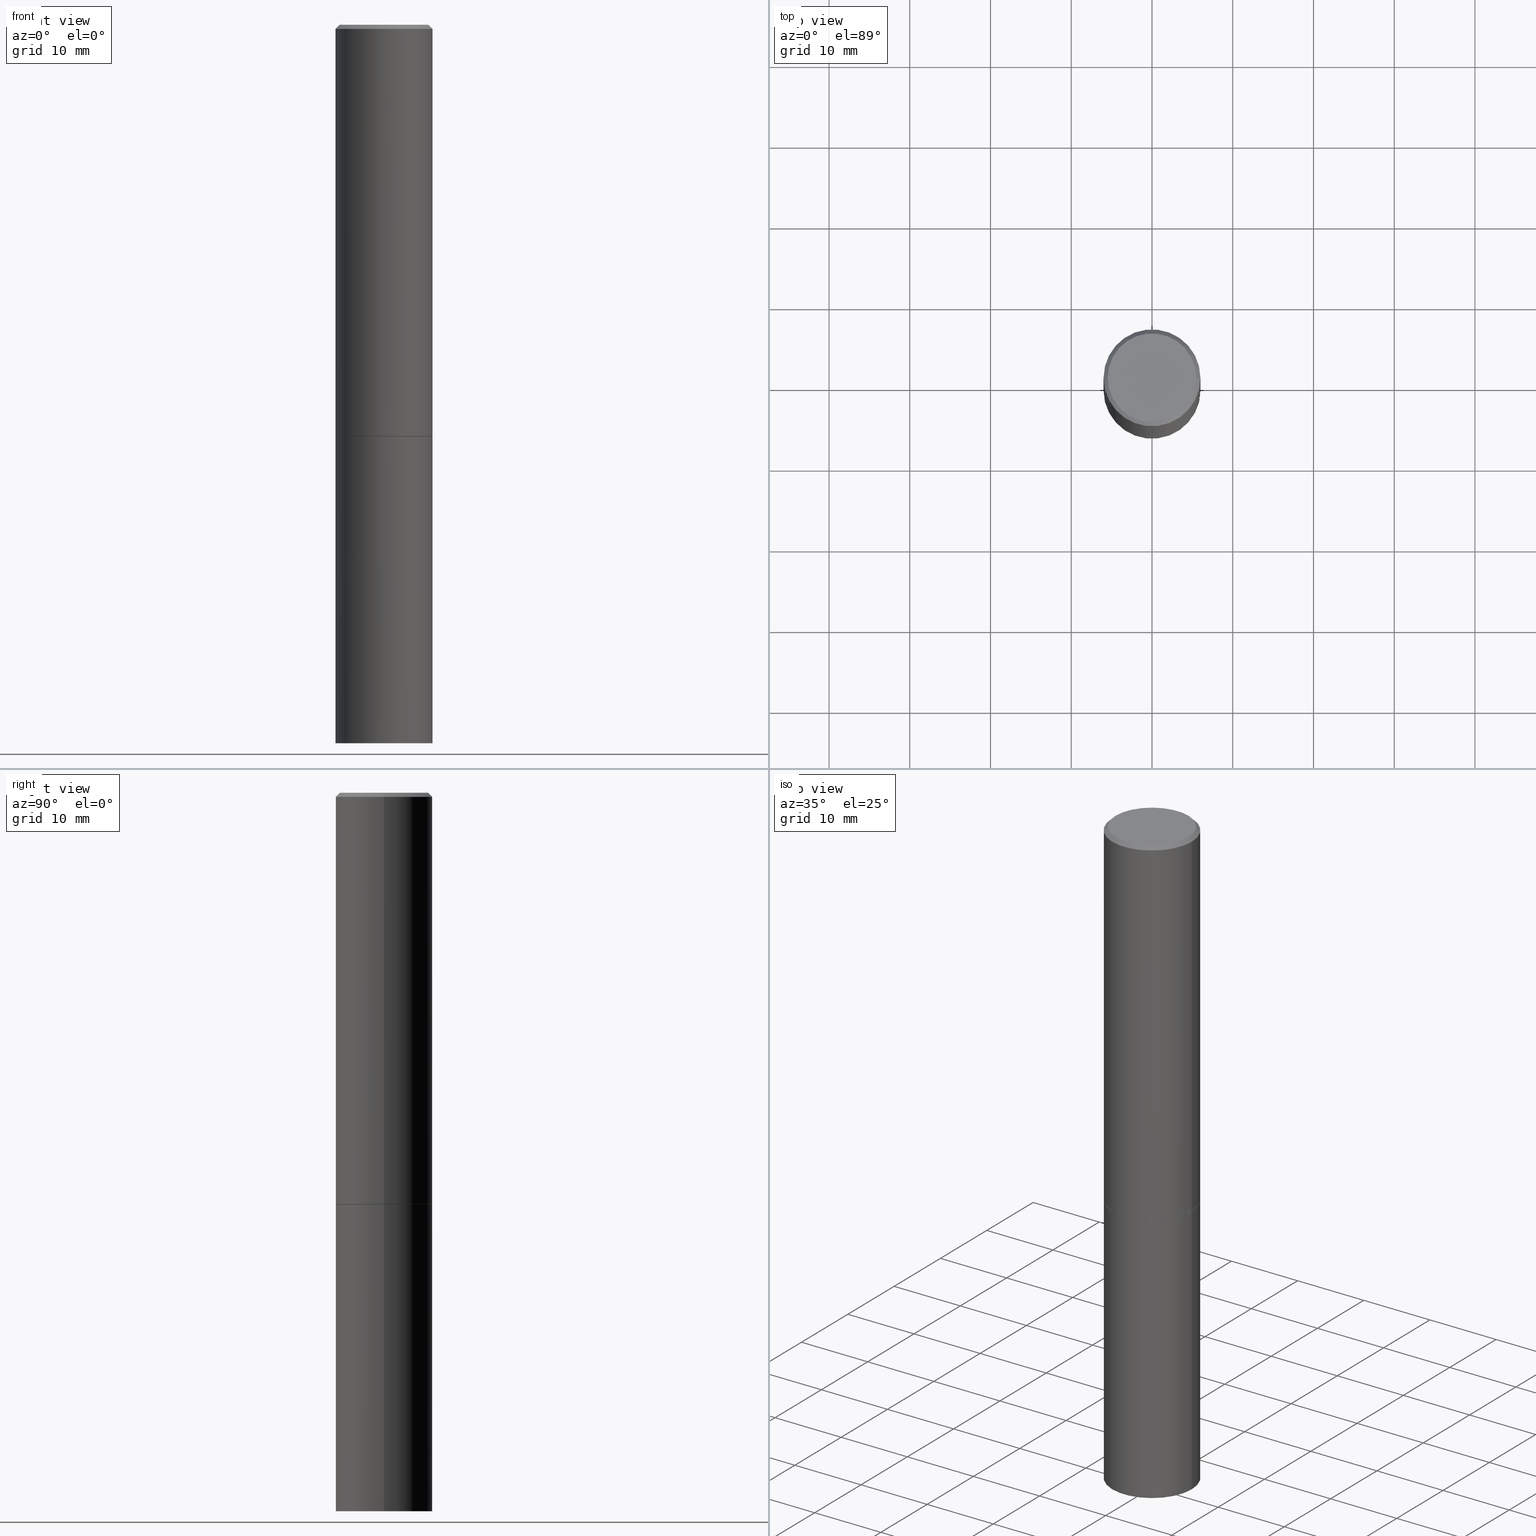
[diagram: canonical four-view strip — front | top / right | iso, engineering-drawing reading convention]
A machine part, canonical four-view strip (front | top / right | iso — engineering-drawing reading convention). The complete STEP part file that produces these views, byte-faithful:
ISO-10303-21;
HEADER;
FILE_DESCRIPTION (( 'STEP AP203' ),
    '1' );
FILE_NAME ('82972.STEP',
    '2024-02-29T19:46:56',
    ( '' ),
    ( '' ),
    'SwSTEP 2.0',
    'SolidWorks 2023',
    '' );
FILE_SCHEMA (( 'CONFIG_CONTROL_DESIGN' ));
ENDSEC;

DATA;
#1 = CONICAL_SURFACE ( 'NONE', #338, 0.2361999999999997157, 0.7853981633974472798 ) ;
#2 = VECTOR ( 'NONE', #18, 39.37007874015748143 ) ;
#3 = ORIENTED_EDGE ( 'NONE', *, *, #309, .T. ) ;
#4 = CARTESIAN_POINT ( 'NONE',  ( -0.2161999999999997257, 1.544631344304200197E-15, 4.268512490089730842E-18 ) ) ;
#5 = PRODUCT_DEFINITION_SHAPE ( 'NONE', 'NONE',  #269 ) ;
#6 = PERSON_AND_ORGANIZATION_ROLE ( 'design_supplier' ) ;
#7 = LENGTH_MEASURE_WITH_UNIT ( LENGTH_MEASURE( 0.02539999999999999897 ), #156 );
#8 = FACE_OUTER_BOUND ( 'NONE', #254, .T. ) ;
#9 = COORDINATED_UNIVERSAL_TIME_OFFSET ( 5, 0, .BEHIND. ) ;
#10 = CARTESIAN_POINT ( 'NONE',  ( -0.2351999999999999924, -5.338999717621511235E-15, -2.007800000000000029 ) ) ;
#11 = EDGE_CURVE ( 'NONE', #243, #342, #271, .T. ) ;
#12 = DATE_AND_TIME ( #40, #246 ) ;
#13 = DIRECTION ( 'NONE',  ( 1.000000000000000000, -6.982962677686264344E-15, 0.000000000000000000 ) ) ;
#14 = CARTESIAN_POINT ( 'NONE',  ( 0.2361999999999997157, -1.690279253850496996E-15, -0.02000000000000003164 ) ) ;
#15 = EDGE_CURVE ( 'NONE', #82, #337, #191, .T. ) ;
#16 = CALENDAR_DATE ( 2024, 29, 2 ) ;
#17 = CIRCLE ( 'NONE', #267, 0.2161999999999997257 ) ;
#18 = DIRECTION ( 'NONE',  ( -2.445468806185136877E-29, 3.491481338843145188E-15, 1.000000000000000000 ) ) ;
#19 = DIRECTION ( 'NONE',  ( -2.445468806185136877E-29, 3.491481338843145188E-15, 1.000000000000000000 ) ) ;
#20 = EDGE_CURVE ( 'NONE', #337, #82, #277, .T. ) ;
#21 = DIRECTION ( 'NONE',  ( -2.445468806185136597E-29, 3.491481338843145583E-15, 1.000000000000000000 ) ) ;
#22 = AXIS2_PLACEMENT_3D ( 'NONE', #42, #157, #13 ) ;
#23 = ORIENTED_EDGE ( 'NONE', *, *, #327, .F. ) ;
#24 = ORIENTED_EDGE ( 'NONE', *, *, #15, .F. ) ;
#25 = ADVANCED_FACE ( 'NONE', ( #150 ), #259, .T. ) ;
#26 = VERTEX_POINT ( 'NONE', #69 ) ;
#27 = VECTOR ( 'NONE', #19, 39.37007874015748143 ) ;
#28 = EDGE_LOOP ( 'NONE', ( #24, #273 ) ) ;
#29 = PERSON ( 'UNSPECIFIED', 'UNSPECIFIED', 'UNSPECIFIED', ('UNSPECIFIED'), ('UNSPECIFIED'), ('UNSPECIFIED') ) ;
#30 = ORIENTED_EDGE ( 'NONE', *, *, #11, .F. ) ;
#31 = MANIFOLD_SOLID_BREP ( 'Body-Move/Copy2[1]', #46 ) ;
#32 = ORIENTED_EDGE ( 'NONE', *, *, #20, .T. ) ;
#33 = DIRECTION ( 'NONE',  ( 2.445468806185136597E-29, -3.491481338843145583E-15, -1.000000000000000000 ) ) ;
#34 = CARTESIAN_POINT ( 'NONE',  ( 4.910012269058516525E-29, -7.010196232129267410E-15, -2.007800000000000029 ) ) ;
#35 = VECTOR ( 'NONE', #334, 39.37007874015748854 ) ;
#36 = DIRECTION ( 'NONE',  ( -2.445468806185136877E-29, 3.491481338843145188E-15, 1.000000000000000000 ) ) ;
#37 = CARTESIAN_POINT ( 'NONE',  ( 8.568678149992099474E-29, -1.223380146317249786E-14, -3.503899999999999793 ) ) ;
#38 = DIRECTION ( 'NONE',  ( 0.7071067811865467956, -7.319954787623254468E-15, -0.7071067811865482389 ) ) ;
#39 = DIRECTION ( 'NONE',  ( 0.000000000000000000, 0.000000000000000000, 1.000000000000000000 ) ) ;
#40 = CALENDAR_DATE ( 2024, 29, 2 ) ;
#41 = DIRECTION ( 'NONE',  ( 1.000000000000000000, -6.982962677686266711E-15, 4.876176775795935793E-29 ) ) ;
#42 = CARTESIAN_POINT ( 'NONE',  ( 4.910012269058516525E-29, -7.010196232129267410E-15, -2.007800000000000029 ) ) ;
#43 = AXIS2_PLACEMENT_3D ( 'NONE', #175, #146, #257 ) ;
#44 = CARTESIAN_POINT ( 'NONE',  ( -1.043851414335219820E-46, 1.490343170380447200E-32, 4.268512490100411279E-18 ) ) ;
#45 = DATE_AND_TIME ( #16, #357 ) ;
#46 = CLOSED_SHELL ( 'NONE', ( #241, #25, #92, #171 ) ) ;
#47 = SECURITY_CLASSIFICATION ( '', '', #93 ) ;
#48 = APPLICATION_CONTEXT ( 'configuration controlled 3d designs of mechanical parts and assemblies' ) ;
#49 = SHAPE_DEFINITION_REPRESENTATION ( #5, #134 ) ;
#50 = CARTESIAN_POINT ( 'NONE',  ( 0.000000000000000000, 0.000000000000000000, 0.000000000000000000 ) ) ;
#51 = ORIENTED_EDGE ( 'NONE', *, *, #11, .T. ) ;
#52 = CONICAL_SURFACE ( 'NONE', #22, 0.2351999999999999924, 0.7853981633974141952 ) ;
#53 = CC_DESIGN_DATE_AND_TIME_ASSIGNMENT ( #12, #234, ( #47 ) ) ;
#54 = VERTEX_POINT ( 'NONE', #239 ) ;
#55 = ADVANCED_FACE ( 'NONE', ( #130 ), #214, .F. ) ;
#56 = VERTEX_POINT ( 'NONE', #332 ) ;
#57 = VECTOR ( 'NONE', #62, 39.37007874015748143 ) ;
#58 = ORIENTED_EDGE ( 'NONE', *, *, #244, .T. ) ;
#59 = FACE_OUTER_BOUND ( 'NONE', #168, .T. ) ;
#60 = DIRECTION ( 'NONE',  ( -2.445468806185136597E-29, 3.491481338843145583E-15, 1.000000000000000000 ) ) ;
#61 = PERSON_AND_ORGANIZATION_ROLE ( 'creator' ) ;
#62 = DIRECTION ( 'NONE',  ( -0.7071067811865467956, 2.468850131082249172E-15, -0.7071067811865482389 ) ) ;
#63 = FACE_OUTER_BOUND ( 'NONE', #222, .T. ) ;
#64 = LOCAL_TIME ( 14, 46, 56.00000000000000000, #120 ) ;
#65 = CC_DESIGN_SECURITY_CLASSIFICATION ( #47, ( #158 ) ) ;
#66 = DIRECTION ( 'NONE',  ( -2.445468806185136597E-29, 3.491481338843145583E-15, 1.000000000000000000 ) ) ;
#67 = ADVANCED_FACE ( 'NONE', ( #63 ), #1, .T. ) ;
#68 = PLANE ( 'NONE',  #137 ) ;
#69 = CARTESIAN_POINT ( 'NONE',  ( 0.2351999999999999924, -8.652589053921076343E-15, -2.007800000000000029 ) ) ;
#70 = DIRECTION ( 'NONE',  ( -1.000000000000000000, 6.982962677686266711E-15, 0.000000000000000000 ) ) ;
#71 = CARTESIAN_POINT ( 'NONE',  ( 4.910012269058516525E-29, -7.010196232129267410E-15, -2.007800000000000029 ) ) ;
#72 = APPROVAL_ROLE ( '' ) ;
#73 = CARTESIAN_POINT ( 'NONE',  ( 4.910012269058516525E-29, -7.010196232129267410E-15, -2.007800000000000029 ) ) ;
#74 = APPROVAL_STATUS ( 'not_yet_approved' ) ;
#75 = AXIS2_PLACEMENT_3D ( 'NONE', #240, #299, #165 ) ;
#76 = CYLINDRICAL_SURFACE ( 'NONE', #221, 0.2361999999999998545 ) ;
#77 = CLOSED_SHELL ( 'NONE', ( #213, #274, #360, #67, #366, #207, #104, #55 ) ) ;
#78 = AXIS2_PLACEMENT_3D ( 'NONE', #216, #193, #79 ) ;
#79 = DIRECTION ( 'NONE',  ( 1.000000000000000000, -6.982962677686265133E-15, 0.000000000000000000 ) ) ;
#80 = FACE_OUTER_BOUND ( 'NONE', #248, .T. ) ;
#81 = VERTEX_POINT ( 'NONE', #184 ) ;
#82 = VERTEX_POINT ( 'NONE', #210 ) ;
#83 = ORIENTED_EDGE ( 'NONE', *, *, #236, .T. ) ;
#84 = ORIENTED_EDGE ( 'NONE', *, *, #256, .T. ) ;
#85 = EDGE_CURVE ( 'NONE', #197, #56, #17, .T. ) ;
#86 = AXIS2_PLACEMENT_3D ( 'NONE', #37, #351, #206 ) ;
#87 = CIRCLE ( 'NONE', #75, 0.2161999999999997257 ) ;
#88 = CARTESIAN_POINT ( 'NONE',  ( 8.568678149992099474E-29, -1.223380146317249786E-14, -3.503899999999999793 ) ) ;
#89 = DIRECTION ( 'NONE',  ( 1.000000000000000000, -6.982962677686265133E-15, 0.000000000000000000 ) ) ;
#90 = CARTESIAN_POINT ( 'NONE',  ( 4.890937612370280165E-31, -6.982962677686301470E-17, -0.02000000000000003164 ) ) ;
#91 = APPROVAL_DATE_TIME ( #344, #250 ) ;
#92 = ADVANCED_FACE ( 'NONE', ( #178 ), #160, .F. ) ;
#93 = SECURITY_CLASSIFICATION_LEVEL ( 'unclassified' ) ;
#94 =( NAMED_UNIT ( * ) PLANE_ANGLE_UNIT ( ) SI_UNIT ( $, .RADIAN. ) );
#95 = CARTESIAN_POINT ( 'NONE',  ( -0.2361999999999999933, -7.943696905785525451E-15, -2.007800000000000029 ) ) ;
#96 = AXIS2_PLACEMENT_3D ( 'NONE', #71, #314, #181 ) ;
#97 = DIRECTION ( 'NONE',  ( -2.445468806185136597E-29, 3.491481338843145583E-15, 1.000000000000000000 ) ) ;
#98 = CARTESIAN_POINT ( 'NONE',  ( -0.2362000000000000210, -1.859965246918283512E-15, -2.006799999999999695 ) ) ;
#99 = APPROVAL_STATUS ( 'not_yet_approved' ) ;
#100 = DIRECTION ( 'NONE',  ( 1.000000000000000000, -6.982962677686264344E-15, 0.000000000000000000 ) ) ;
#101 = DIRECTION ( 'NONE',  ( -1.000000000000000000, 6.982962677686265922E-15, -4.876176775795935793E-29 ) ) ;
#102 = DIRECTION ( 'NONE',  ( 1.000000000000000000, -6.982962677686266711E-15, 0.000000000000000000 ) ) ;
#103 = CIRCLE ( 'NONE', #363, 0.2361999999999997157 ) ;
#104 = ADVANCED_FACE ( 'NONE', ( #237 ), #68, .F. ) ;
#105 = CARTESIAN_POINT ( 'NONE',  ( -0.2361999999999997157, 1.579546157692631255E-15, -0.02000000000000003164 ) ) ;
#106 = ORIENTED_EDGE ( 'NONE', *, *, #358, .F. ) ;
#107 = ORIENTED_EDGE ( 'NONE', *, *, #298, .F. ) ;
#108 = PERSON_AND_ORGANIZATION ( #29, #285 ) ;
#109 = AXIS2_PLACEMENT_3D ( 'NONE', #252, #317, #41 ) ;
#110 = ORIENTED_EDGE ( 'NONE', *, *, #112, .T. ) ;
#111 = ORIENTED_EDGE ( 'NONE', *, *, #327, .T. ) ;
#112 = EDGE_CURVE ( 'NONE', #54, #26, #349, .T. ) ;
#113 = UNCERTAINTY_MEASURE_WITH_UNIT (LENGTH_MEASURE( 1.000000000000000082E-05 ), #121, 'distance_accuracy_value', 'NONE');
#114 = ORIENTED_EDGE ( 'NONE', *, *, #286, .T. ) ;
#115 = AXIS2_PLACEMENT_3D ( 'NONE', #125, #97, #89 ) ;
#116 = APPROVAL_ROLE ( '' ) ;
#117 = EDGE_CURVE ( 'NONE', #56, #81, #205, .T. ) ;
#118 = CARTESIAN_POINT ( 'NONE',  ( 1.649375784469545040E-15, 0.2361999999999929989, -2.007800000000000473 ) ) ;
#119 = ORIENTED_EDGE ( 'NONE', *, *, #315, .F. ) ;
#120 = COORDINATED_UNIVERSAL_TIME_OFFSET ( 5, 0, .BEHIND. ) ;
#121 =( CONVERSION_BASED_UNIT ( 'INCH', #7 ) LENGTH_UNIT ( ) NAMED_UNIT ( #169 ) );
#122 = CYLINDRICAL_SURFACE ( 'NONE', #242, 0.2361999999999999933 ) ;
#123 = DIRECTION ( 'NONE',  ( -1.000000000000000000, 6.982962677686265922E-15, -4.876176775795935793E-29 ) ) ;
#124 = VECTOR ( 'NONE', #38, 39.37007874015748143 ) ;
#125 = CARTESIAN_POINT ( 'NONE',  ( 4.907566800252331482E-29, -7.006704750790423614E-15, -2.006799999999999695 ) ) ;
#126 = CARTESIAN_POINT ( 'NONE',  ( 0.000000000000000000, 0.000000000000000000, 0.000000000000000000 ) ) ;
#127 = PRODUCT ( '82972', '82972', '', ( #199 ) ) ;
#128 = PERSON_AND_ORGANIZATION ( #29, #285 ) ;
#129 = DIRECTION ( 'NONE',  ( 1.000000000000000000, -6.982962677686269077E-15, 0.000000000000000000 ) ) ;
#130 = FACE_OUTER_BOUND ( 'NONE', #170, .T. ) ;
#131 = CC_DESIGN_APPROVAL ( #250, ( #269 ) ) ;
#132 = CARTESIAN_POINT ( 'NONE',  ( 0.2351999999999999924, -8.652589053921076343E-15, -2.007800000000000029 ) ) ;
#133 = LINE ( 'NONE', #105, #57 ) ;
#134 = ADVANCED_BREP_SHAPE_REPRESENTATION ( '82972', ( #31, #161, #238 ), #310 ) ;
#135 = ORIENTED_EDGE ( 'NONE', *, *, #296, .T. ) ;
#136 = ORIENTED_EDGE ( 'NONE', *, *, #117, .F. ) ;
#137 = AXIS2_PLACEMENT_3D ( 'NONE', #73, #283, #201 ) ;
#138 = AXIS2_PLACEMENT_3D ( 'NONE', #88, #319, #288 ) ;
#139 = CONICAL_SURFACE ( 'NONE', #167, 0.2361999999999997157, 0.7853981633974472798 ) ;
#140 = EDGE_CURVE ( 'NONE', #220, #195, #291, .T. ) ;
#141 = ORIENTED_EDGE ( 'NONE', *, *, #244, .F. ) ;
#142 = ORIENTED_EDGE ( 'NONE', *, *, #333, .T. ) ;
#143 = APPLICATION_PROTOCOL_DEFINITION ( 'international standard', 'config_control_design', 1994, #48 ) ;
#144 = PERSON_AND_ORGANIZATION ( #29, #285 ) ;
#145 = FACE_OUTER_BOUND ( 'NONE', #307, .T. ) ;
#146 = DIRECTION ( 'NONE',  ( -2.445468806185136597E-29, 3.491481338843145583E-15, 1.000000000000000000 ) ) ;
#147 = ORIENTED_EDGE ( 'NONE', *, *, #117, .T. ) ;
#148 = CYLINDRICAL_SURFACE ( 'NONE', #109, 0.2361999999999998545 ) ;
#149 = DIRECTION ( 'NONE',  ( 1.000000000000000000, -6.982962677686266711E-15, 0.000000000000000000 ) ) ;
#150 = FACE_OUTER_BOUND ( 'NONE', #28, .T. ) ;
#151 = DATE_AND_TIME ( #230, #339 ) ;
#152 = CARTESIAN_POINT ( 'NONE',  ( -0.2361999999999999933, -7.943696905785525451E-15, -3.503899999999999793 ) ) ;
#153 = CC_DESIGN_PERSON_AND_ORGANIZATION_ASSIGNMENT ( #290, #179, ( #47 ) ) ;
#154 = DIRECTION ( 'NONE',  ( -2.445468806185136597E-29, 3.491481338843145583E-15, 1.000000000000000000 ) ) ;
#155 = APPROVAL_DATE_TIME ( #316, #279 ) ;
#156 =( LENGTH_UNIT ( ) NAMED_UNIT ( * ) SI_UNIT ( $, .METRE. ) );
#157 = DIRECTION ( 'NONE',  ( -2.445468806185136597E-29, 3.491481338843145583E-15, 1.000000000000000000 ) ) ;
#158 = PRODUCT_DEFINITION_FORMATION_WITH_SPECIFIED_SOURCE ( 'ANY', '', #127, .NOT_KNOWN. ) ;
#159 = CC_DESIGN_PERSON_AND_ORGANIZATION_ASSIGNMENT ( #260, #176, ( #158 ) ) ;
#160 = PLANE ( 'NONE',  #321 ) ;
#161 = MANIFOLD_SOLID_BREP ( 'Body-Move/Copy2[2]', #77 ) ;
#162 = EDGE_CURVE ( 'NONE', #342, #243, #200, .T. ) ;
#163 = VECTOR ( 'NONE', #350, 39.37007874015748143 ) ;
#164 = CARTESIAN_POINT ( 'NONE',  ( 0.2361999999999999933, -1.649375784469496131E-15, 1.151752954443000088E-29 ) ) ;
#165 = DIRECTION ( 'NONE',  ( 1.000000000000000000, -6.982962677686267499E-15, 4.876217060660161841E-29 ) ) ;
#166 = ORIENTED_EDGE ( 'NONE', *, *, #85, .T. ) ;
#167 = AXIS2_PLACEMENT_3D ( 'NONE', #282, #33, #70 ) ;
#168 = EDGE_LOOP ( 'NONE', ( #245, #147, #83, #23 ) ) ;
#169 = DIMENSIONAL_EXPONENTS ( 1.000000000000000000, 0.000000000000000000, 0.000000000000000000, 0.000000000000000000, 0.000000000000000000, 0.000000000000000000, 0.000000000000000000 ) ;
#170 = EDGE_LOOP ( 'NONE', ( #166, #84 ) ) ;
#171 = ADVANCED_FACE ( 'NONE', ( #231 ), #233, .T. ) ;
#172 = ORIENTED_EDGE ( 'NONE', *, *, #286, .F. ) ;
#173 = ORIENTED_EDGE ( 'NONE', *, *, #236, .F. ) ;
#174 = PERSON_AND_ORGANIZATION_ROLE ( 'design_owner' ) ;
#175 = CARTESIAN_POINT ( 'NONE',  ( 0.000000000000000000, 0.000000000000000000, 0.000000000000000000 ) ) ;
#176 = PERSON_AND_ORGANIZATION_ROLE ( 'creator' ) ;
#177 = APPROVAL_PERSON_ORGANIZATION ( #355, #279, #202 ) ;
#178 = FACE_OUTER_BOUND ( 'NONE', #362, .T. ) ;
#179 = PERSON_AND_ORGANIZATION_ROLE ( 'classification_officer' ) ;
#180 = DIRECTION ( 'NONE',  ( 1.000000000000000000, -6.982962677686264344E-15, 0.000000000000000000 ) ) ;
#181 = DIRECTION ( 'NONE',  ( 1.000000000000000000, -6.982962677686264344E-15, 0.000000000000000000 ) ) ;
#182 = CALENDAR_DATE ( 2024, 29, 2 ) ;
#183 = CC_DESIGN_DATE_AND_TIME_ASSIGNMENT ( #151, #211, ( #269 ) ) ;
#184 = CARTESIAN_POINT ( 'NONE',  ( 0.2361999999999997157, -1.690279253850496996E-15, -0.02000000000000003164 ) ) ;
#185 = COORDINATED_UNIVERSAL_TIME_OFFSET ( 5, 0, .BEHIND. ) ;
#186 = CARTESIAN_POINT ( 'NONE',  ( -0.2361999999999998545, 1.678301941865355605E-15, -1.161852468318208056E-29 ) ) ;
#187 = CIRCLE ( 'NONE', #115, 0.2361999999999999933 ) ;
#188 = EDGE_CURVE ( 'NONE', #337, #243, #318, .T. ) ;
#189 = LINE ( 'NONE', #132, #35 ) ;
#190 = DIRECTION ( 'NONE',  ( 2.438088387897960049E-29, -3.491481338843145188E-15, -1.000000000000000000 ) ) ;
#191 = CIRCLE ( 'NONE', #138, 0.2361999999999999933 ) ;
#192 = AXIS2_PLACEMENT_3D ( 'NONE', #203, #287, #149 ) ;
#193 = DIRECTION ( 'NONE',  ( -2.445468806185136597E-29, 3.491481338843145583E-15, 1.000000000000000000 ) ) ;
#194 = ORIENTED_EDGE ( 'NONE', *, *, #85, .F. ) ;
#195 = VERTEX_POINT ( 'NONE', #253 ) ;
#196 = VECTOR ( 'NONE', #36, 39.37007874015748143 ) ;
#197 = VERTEX_POINT ( 'NONE', #4 ) ;
#198 = ORIENTED_EDGE ( 'NONE', *, *, #296, .F. ) ;
#199 = MECHANICAL_CONTEXT ( 'NONE', #325, 'mechanical' ) ;
#200 = CIRCLE ( 'NONE', #343, 0.2361999999999999933 ) ;
#201 = DIRECTION ( 'NONE',  ( 1.000000000000000000, -6.982962677686265922E-15, 4.876176775795935793E-29 ) ) ;
#202 = APPROVAL_ROLE ( '' ) ;
#203 = CARTESIAN_POINT ( 'NONE',  ( 4.890937612370280165E-31, -6.982962677686301470E-17, -0.02000000000000003164 ) ) ;
#204 = DIRECTION ( 'NONE',  ( 1.000000000000000000, -6.982962677686269077E-15, 0.000000000000000000 ) ) ;
#205 = LINE ( 'NONE', #14, #124 ) ;
#206 = DIRECTION ( 'NONE',  ( 1.000000000000000000, -6.982962677686265133E-15, 0.000000000000000000 ) ) ;
#207 = ADVANCED_FACE ( 'NONE', ( #8 ), #52, .T. ) ;
#208 = FACE_OUTER_BOUND ( 'NONE', #278, .T. ) ;
#209 = ORIENTED_EDGE ( 'NONE', *, *, #140, .T. ) ;
#210 = CARTESIAN_POINT ( 'NONE',  ( 0.2361999999999999933, -1.388317724764199281E-14, -3.503899999999999793 ) ) ;
#211 = DATE_TIME_ROLE ( 'creation_date' ) ;
#212 = CC_DESIGN_PERSON_AND_ORGANIZATION_ASSIGNMENT ( #128, #6, ( #158 ) ) ;
#213 = ADVANCED_FACE ( 'NONE', ( #235 ), #225, .T. ) ;
#214 = PLANE ( 'NONE',  #330 ) ;
#215 = DIRECTION ( 'NONE',  ( 1.000000000000000000, -6.982962677686266711E-15, 4.876176775795935793E-29 ) ) ;
#216 = CARTESIAN_POINT ( 'NONE',  ( 4.907566800252331482E-29, -7.006704750790423614E-15, -2.006799999999999695 ) ) ;
#217 = APPROVAL_DATE_TIME ( #45, #365 ) ;
#218 = CARTESIAN_POINT ( 'NONE',  ( 0.2361999999999999933, -8.656080535259919350E-15, -2.006799999999999695 ) ) ;
#219 = ORIENTED_EDGE ( 'NONE', *, *, #188, .F. ) ;
#220 = VERTEX_POINT ( 'NONE', #98 ) ;
#221 = AXIS2_PLACEMENT_3D ( 'NONE', #50, #359, #215 ) ;
#222 = EDGE_LOOP ( 'NONE', ( #136, #194, #111, #114 ) ) ;
#223 = ORIENTED_EDGE ( 'NONE', *, *, #315, .T. ) ;
#224 = CARTESIAN_POINT ( 'NONE',  ( 4.910012269058516525E-29, -7.010196232129267410E-15, -2.007800000000000029 ) ) ;
#225 = CONICAL_SURFACE ( 'NONE', #261, 0.2351999999999999924, 0.7853981633974141952 ) ;
#226 = APPROVAL_PERSON_ORGANIZATION ( #326, #365, #72 ) ;
#227 = CC_DESIGN_PERSON_AND_ORGANIZATION_ASSIGNMENT ( #292, #61, ( #269 ) ) ;
#228 = CARTESIAN_POINT ( 'NONE',  ( -0.2361999999999999933, 1.678301941865356591E-15, -1.161852468318208757E-29 ) ) ;
#229 = ORIENTED_EDGE ( 'NONE', *, *, #309, .F. ) ;
#230 = CALENDAR_DATE ( 2024, 29, 2 ) ;
#231 = FACE_OUTER_BOUND ( 'NONE', #308, .T. ) ;
#232 = CIRCLE ( 'NONE', #78, 0.2361999999999999933 ) ;
#233 = CYLINDRICAL_SURFACE ( 'NONE', #43, 0.2361999999999999933 ) ;
#234 = DATE_TIME_ROLE ( 'classification_date' ) ;
#235 = FACE_OUTER_BOUND ( 'NONE', #336, .T. ) ;
#236 = EDGE_CURVE ( 'NONE', #81, #195, #301, .T. ) ;
#237 = FACE_OUTER_BOUND ( 'NONE', #311, .T. ) ;
#238 = AXIS2_PLACEMENT_3D ( 'NONE', #266, #39, #356 ) ;
#239 = CARTESIAN_POINT ( 'NONE',  ( -0.2351999999999999924, -5.333701263273288833E-15, -2.007800000000000029 ) ) ;
#240 = CARTESIAN_POINT ( 'NONE',  ( -1.043851414335219820E-46, 1.490343170380447200E-32, 4.268512490100411279E-18 ) ) ;
#241 = ADVANCED_FACE ( 'NONE', ( #208 ), #122, .T. ) ;
#242 = AXIS2_PLACEMENT_3D ( 'NONE', #126, #348, #323 ) ;
#243 = VERTEX_POINT ( 'NONE', #95 ) ;
#244 = EDGE_CURVE ( 'NONE', #54, #220, #258, .T. ) ;
#245 = ORIENTED_EDGE ( 'NONE', *, *, #256, .F. ) ;
#246 = LOCAL_TIME ( 14, 46, 56.00000000000000000, #9 ) ;
#247 = CC_DESIGN_APPROVAL ( #365, ( #47 ) ) ;
#248 = EDGE_LOOP ( 'NONE', ( #142, #209, #173, #107 ) ) ;
#249 = ORIENTED_EDGE ( 'NONE', *, *, #358, .T. ) ;
#250 = APPROVAL ( #99, 'UNSPECIFIED' ) ;
#251 = DIRECTION ( 'NONE',  ( -1.000000000000000000, 6.982962677686265922E-15, -4.876176775795935793E-29 ) ) ;
#252 = CARTESIAN_POINT ( 'NONE',  ( 0.000000000000000000, 0.000000000000000000, 0.000000000000000000 ) ) ;
#253 = CARTESIAN_POINT ( 'NONE',  ( -0.2361999999999997157, 1.579546157692631255E-15, -0.02000000000000003164 ) ) ;
#254 = EDGE_LOOP ( 'NONE', ( #141, #110, #135, #229 ) ) ;
#255 = COORDINATED_UNIVERSAL_TIME_OFFSET ( 5, 0, .BEHIND. ) ;
#256 = EDGE_CURVE ( 'NONE', #56, #197, #87, .T. ) ;
#257 = DIRECTION ( 'NONE',  ( 1.000000000000000000, -6.982962677686266711E-15, 4.876176775795936353E-29 ) ) ;
#258 = LINE ( 'NONE', #10, #305 ) ;
#259 = PLANE ( 'NONE',  #293 ) ;
#260 = PERSON_AND_ORGANIZATION ( #29, #285 ) ;
#261 = AXIS2_PLACEMENT_3D ( 'NONE', #345, #154, #100 ) ;
#262 = DIRECTION ( 'NONE',  ( -2.445468806185136597E-29, 3.491481338843145583E-15, 1.000000000000000000 ) ) ;
#263 = DIRECTION ( 'NONE',  ( 2.438088387897960049E-29, -3.491481338843145188E-15, -1.000000000000000000 ) ) ;
#264 = CARTESIAN_POINT ( 'NONE',  ( 1.509716530915768746E-15, 0.2161999999999997257, -7.527240092128370190E-16 ) ) ;
#265 = APPLICATION_PROTOCOL_DEFINITION ( 'international standard', 'config_control_design', 1994, #325 ) ;
#266 = CARTESIAN_POINT ( 'NONE',  ( 0.000000000000000000, 0.000000000000000000, 0.000000000000000000 ) ) ;
#267 = AXIS2_PLACEMENT_3D ( 'NONE', #44, #262, #354 ) ;
#268 = LOCAL_TIME ( 14, 46, 56.00000000000000000, #320 ) ;
#269 = PRODUCT_DEFINITION ( 'UNKNOWN', '', #158, #346 ) ;
#270 = CARTESIAN_POINT ( 'NONE',  ( 4.890937612370280165E-31, -6.982962677686301470E-17, -0.02000000000000003164 ) ) ;
#271 = CIRCLE ( 'NONE', #300, 0.2361999999999999933 ) ;
#272 = CIRCLE ( 'NONE', #335, 0.2351999999999999924 ) ;
#273 = ORIENTED_EDGE ( 'NONE', *, *, #20, .F. ) ;
#274 = ADVANCED_FACE ( 'NONE', ( #80 ), #76, .T. ) ;
#275 = VERTEX_POINT ( 'NONE', #218 ) ;
#276 = ORIENTED_EDGE ( 'NONE', *, *, #162, .T. ) ;
#277 = CIRCLE ( 'NONE', #86, 0.2361999999999999933 ) ;
#278 = EDGE_LOOP ( 'NONE', ( #280, #341, #364, #119 ) ) ;
#279 = APPROVAL ( #74, 'UNSPECIFIED' ) ;
#280 = ORIENTED_EDGE ( 'NONE', *, *, #15, .T. ) ;
#281 = CALENDAR_DATE ( 2024, 29, 2 ) ;
#282 = CARTESIAN_POINT ( 'NONE',  ( 4.890937612370280165E-31, -6.982962677686301470E-17, -0.02000000000000003164 ) ) ;
#283 = DIRECTION ( 'NONE',  ( -2.438088387897960049E-29, 3.491481338843145188E-15, 1.000000000000000000 ) ) ;
#284 = PRODUCT_RELATED_PRODUCT_CATEGORY ( 'detail', '', ( #127 ) ) ;
#285 = ORGANIZATION ( 'UNSPECIFIED', 'UNSPECIFIED', '' ) ;
#286 = EDGE_CURVE ( 'NONE', #195, #81, #103, .T. ) ;
#287 = DIRECTION ( 'NONE',  ( -2.445468806185136597E-29, 3.491481338843145583E-15, 1.000000000000000000 ) ) ;
#288 = DIRECTION ( 'NONE',  ( 1.000000000000000000, -6.982962677686265133E-15, 0.000000000000000000 ) ) ;
#289 = DIRECTION ( 'NONE',  ( 2.445468806185136597E-29, -3.491481338843145583E-15, -1.000000000000000000 ) ) ;
#290 = PERSON_AND_ORGANIZATION ( #29, #285 ) ;
#291 = LINE ( 'NONE', #186, #163 ) ;
#292 = PERSON_AND_ORGANIZATION ( #29, #285 ) ;
#293 = AXIS2_PLACEMENT_3D ( 'NONE', #324, #312, #251 ) ;
#294 = APPROVAL_PERSON_ORGANIZATION ( #144, #250, #116 ) ;
#295 = DIRECTION ( 'NONE',  ( -1.000000000000000000, 6.982962677686266711E-15, 0.000000000000000000 ) ) ;
#296 = EDGE_CURVE ( 'NONE', #26, #275, #189, .T. ) ;
#297 = CARTESIAN_POINT ( 'NONE',  ( 0.2361999999999998545, -1.649375784469495145E-15, 1.151752954442999387E-29 ) ) ;
#298 = EDGE_CURVE ( 'NONE', #275, #81, #331, .T. ) ;
#299 = DIRECTION ( 'NONE',  ( -2.445468806185136597E-29, 3.491481338843145583E-15, 1.000000000000000000 ) ) ;
#300 = AXIS2_PLACEMENT_3D ( 'NONE', #224, #347, #204 ) ;
#301 = CIRCLE ( 'NONE', #192, 0.2361999999999997157 ) ;
#302 =( NAMED_UNIT ( * ) SI_UNIT ( $, .STERADIAN. ) SOLID_ANGLE_UNIT ( ) );
#303 = LINE ( 'NONE', #164, #27 ) ;
#304 = ORIENTED_EDGE ( 'NONE', *, *, #140, .F. ) ;
#305 = VECTOR ( 'NONE', #328, 39.37007874015748854 ) ;
#306 = ORIENTED_EDGE ( 'NONE', *, *, #298, .T. ) ;
#307 = EDGE_LOOP ( 'NONE', ( #304, #3, #306, #172 ) ) ;
#308 = EDGE_LOOP ( 'NONE', ( #219, #32, #223, #30 ) ) ;
#309 = EDGE_CURVE ( 'NONE', #220, #275, #232, .T. ) ;
#310 =( GEOMETRIC_REPRESENTATION_CONTEXT ( 3 ) GLOBAL_UNCERTAINTY_ASSIGNED_CONTEXT ( ( #113 ) ) GLOBAL_UNIT_ASSIGNED_CONTEXT ( ( #121, #94, #302 ) ) REPRESENTATION_CONTEXT ( 'NONE', 'WORKASPACE' ) );
#311 = EDGE_LOOP ( 'NONE', ( #106, #340 ) ) ;
#312 = DIRECTION ( 'NONE',  ( 2.438088387897960049E-29, -3.491481338843145188E-15, -1.000000000000000000 ) ) ;
#313 = CARTESIAN_POINT ( 'NONE',  ( 0.2361999999999999933, -8.659572016598763935E-15, -2.007800000000000029 ) ) ;
#314 = DIRECTION ( 'NONE',  ( -2.445468806185136597E-29, 3.491481338843145583E-15, 1.000000000000000000 ) ) ;
#315 = EDGE_CURVE ( 'NONE', #82, #342, #303, .T. ) ;
#316 = DATE_AND_TIME ( #281, #268 ) ;
#317 = DIRECTION ( 'NONE',  ( -2.445468806185136597E-29, 3.491481338843145583E-15, 1.000000000000000000 ) ) ;
#318 = LINE ( 'NONE', #228, #196 ) ;
#319 = DIRECTION ( 'NONE',  ( -2.445468806185136597E-29, 3.491481338843145583E-15, 1.000000000000000000 ) ) ;
#320 = COORDINATED_UNIVERSAL_TIME_OFFSET ( 5, 0, .BEHIND. ) ;
#321 = AXIS2_PLACEMENT_3D ( 'NONE', #118, #263, #123 ) ;
#322 = CC_DESIGN_APPROVAL ( #279, ( #158 ) ) ;
#323 = DIRECTION ( 'NONE',  ( 1.000000000000000000, -6.982962677686266711E-15, 4.876176775795936353E-29 ) ) ;
#324 = CARTESIAN_POINT ( 'NONE',  ( 1.649375784469581525E-15, 0.2361999999999877808, -3.503900000000000681 ) ) ;
#325 = APPLICATION_CONTEXT ( 'configuration controlled 3d designs of mechanical parts and assemblies' ) ;
#326 = PERSON_AND_ORGANIZATION ( #29, #285 ) ;
#327 = EDGE_CURVE ( 'NONE', #197, #195, #133, .T. ) ;
#328 = DIRECTION ( 'NONE',  ( -0.7071067811865232589, 7.493145998870265808E-15, 0.7071067811865715536 ) ) ;
#329 = APPROVAL_STATUS ( 'not_yet_approved' ) ;
#330 = AXIS2_PLACEMENT_3D ( 'NONE', #264, #190, #101 ) ;
#331 = LINE ( 'NONE', #297, #2 ) ;
#332 = CARTESIAN_POINT ( 'NONE',  ( 0.2161999999999997257, -1.586759460484350016E-15, 4.268512490111238857E-18 ) ) ;
#333 = EDGE_CURVE ( 'NONE', #275, #220, #187, .T. ) ;
#334 = DIRECTION ( 'NONE',  ( 0.7071067811865232589, -2.468850131082003836E-15, 0.7071067811865715536 ) ) ;
#335 = AXIS2_PLACEMENT_3D ( 'NONE', #352, #66, #180 ) ;
#336 = EDGE_LOOP ( 'NONE', ( #249, #58, #361, #198 ) ) ;
#337 = VERTEX_POINT ( 'NONE', #152 ) ;
#338 = AXIS2_PLACEMENT_3D ( 'NONE', #90, #289, #295 ) ;
#339 = LOCAL_TIME ( 14, 46, 56.00000000000000000, #255 ) ;
#340 = ORIENTED_EDGE ( 'NONE', *, *, #112, .F. ) ;
#341 = ORIENTED_EDGE ( 'NONE', *, *, #188, .T. ) ;
#342 = VERTEX_POINT ( 'NONE', #313 ) ;
#343 = AXIS2_PLACEMENT_3D ( 'NONE', #34, #60, #129 ) ;
#344 = DATE_AND_TIME ( #182, #64 ) ;
#345 = CARTESIAN_POINT ( 'NONE',  ( 4.910012269058516525E-29, -7.010196232129267410E-15, -2.007800000000000029 ) ) ;
#346 = DESIGN_CONTEXT ( 'detailed design', #48, 'design' ) ;
#347 = DIRECTION ( 'NONE',  ( -2.445468806185136597E-29, 3.491481338843145583E-15, 1.000000000000000000 ) ) ;
#348 = DIRECTION ( 'NONE',  ( -2.445468806185136597E-29, 3.491481338843145583E-15, 1.000000000000000000 ) ) ;
#349 = CIRCLE ( 'NONE', #96, 0.2351999999999999924 ) ;
#350 = DIRECTION ( 'NONE',  ( -2.445468806185136877E-29, 3.491481338843145188E-15, 1.000000000000000000 ) ) ;
#351 = DIRECTION ( 'NONE',  ( -2.445468806185136597E-29, 3.491481338843145583E-15, 1.000000000000000000 ) ) ;
#352 = CARTESIAN_POINT ( 'NONE',  ( 4.910012269058516525E-29, -7.010196232129267410E-15, -2.007800000000000029 ) ) ;
#353 = CC_DESIGN_PERSON_AND_ORGANIZATION_ASSIGNMENT ( #108, #174, ( #127 ) ) ;
#354 = DIRECTION ( 'NONE',  ( 1.000000000000000000, -6.982962677686267499E-15, 4.876217060660161841E-29 ) ) ;
#355 = PERSON_AND_ORGANIZATION ( #29, #285 ) ;
#356 = DIRECTION ( 'NONE',  ( 1.000000000000000000, 0.000000000000000000, 0.000000000000000000 ) ) ;
#357 = LOCAL_TIME ( 14, 46, 56.00000000000000000, #185 ) ;
#358 = EDGE_CURVE ( 'NONE', #26, #54, #272, .T. ) ;
#359 = DIRECTION ( 'NONE',  ( -2.445468806185136597E-29, 3.491481338843145583E-15, 1.000000000000000000 ) ) ;
#360 = ADVANCED_FACE ( 'NONE', ( #59 ), #139, .T. ) ;
#361 = ORIENTED_EDGE ( 'NONE', *, *, #333, .F. ) ;
#362 = EDGE_LOOP ( 'NONE', ( #276, #51 ) ) ;
#363 = AXIS2_PLACEMENT_3D ( 'NONE', #270, #21, #102 ) ;
#364 = ORIENTED_EDGE ( 'NONE', *, *, #162, .F. ) ;
#365 = APPROVAL ( #329, 'UNSPECIFIED' ) ;
#366 = ADVANCED_FACE ( 'NONE', ( #145 ), #148, .T. ) ;
ENDSEC;
END-ISO-10303-21;
